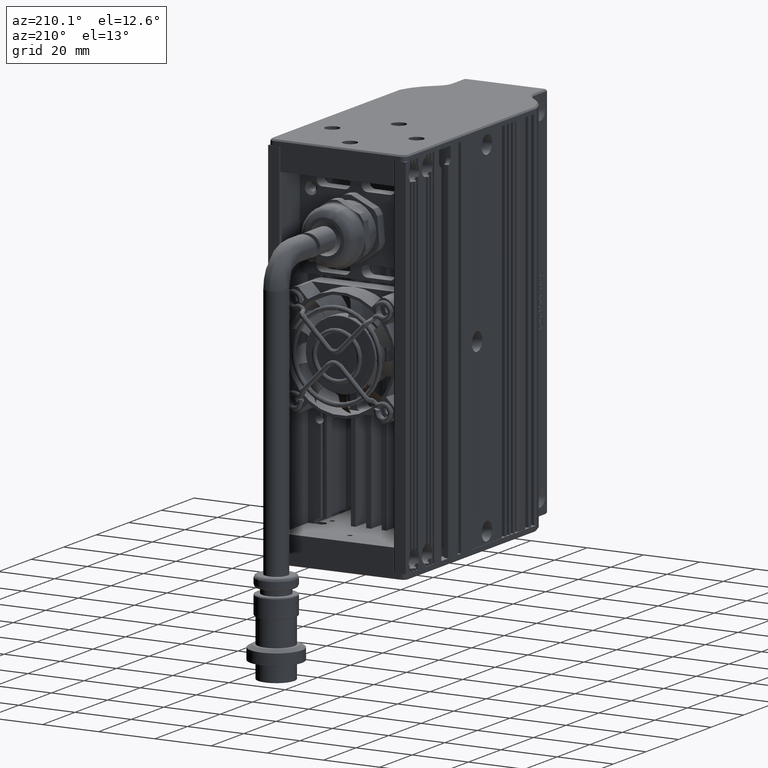
[diagram: clean part render]
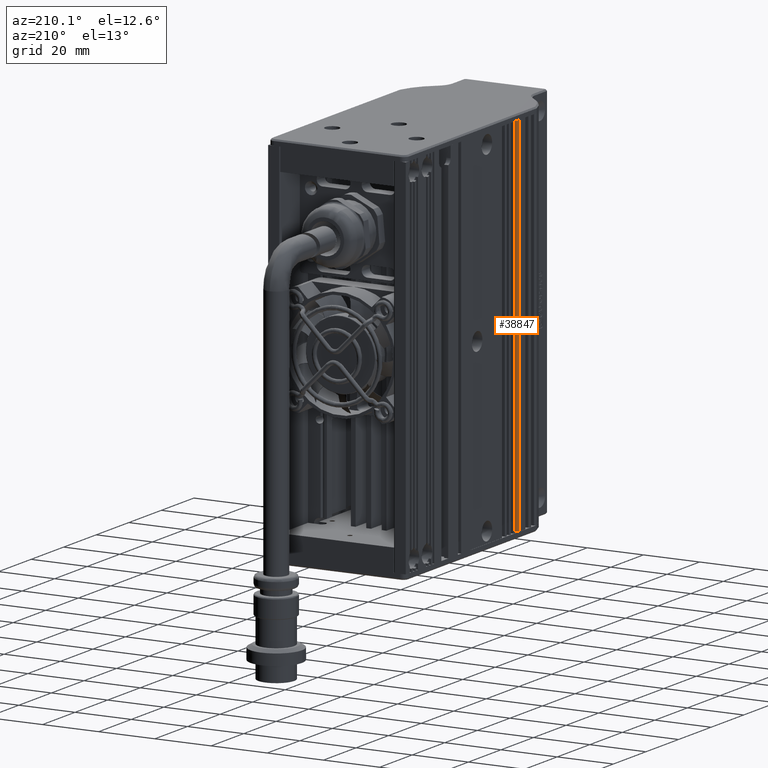
[diagram: same view with one face highlighted and labeled with its STEP entity id]
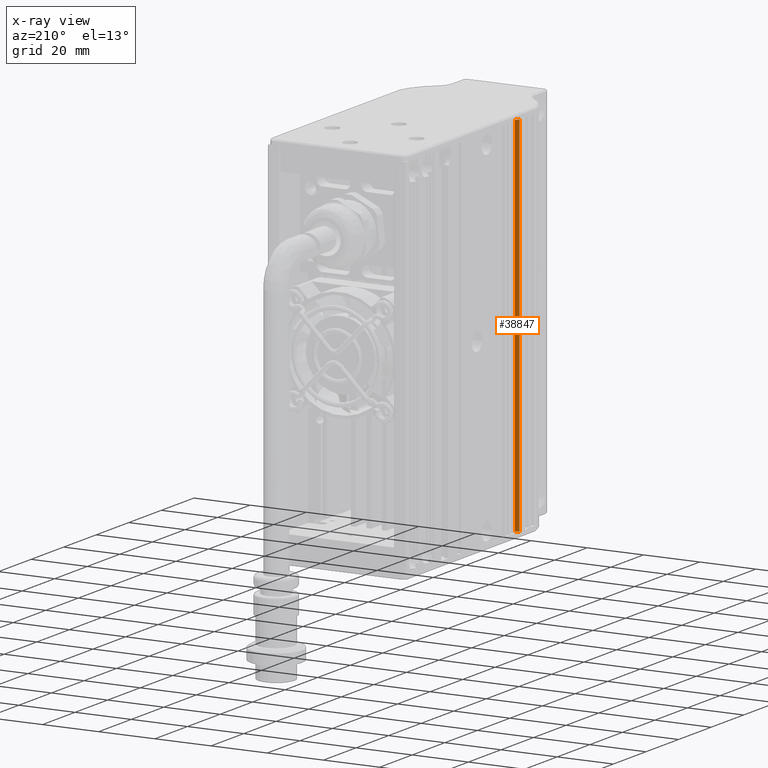
[diagram: x-ray of the same camera — body ghosted, the highlighted face saturated]
A machine part, auxiliary view. The second image highlights one B-rep face of the part: STEP entity #38847.
The next image is the same camera in x-ray: the body ghosted, the highlighted face saturated — about 0% of this face is hidden behind the body in this view.
In plain terms, the highlighted cylindrical surface (edge-blend (fillet) strip) has radius 1 mm, axis along (0, 0, 1).
Its self-contained STEP definition (entity closure, byte-faithful):
#747 = AXIS2_PLACEMENT_3D ( 'NONE', #2057, #13193, #24790 ) ;
#1173 = AXIS2_PLACEMENT_3D ( 'NONE', #70820, #70582, #31671 ) ;
#2057 = CARTESIAN_POINT ( 'NONE',  ( -60.96201180637543600, -25.99547579693032200, -65.00000000000000000 ) ) ;
#2901 = VECTOR ( 'NONE', #12424, 1000.000000000000000 ) ;
#3863 = ORIENTED_EDGE ( 'NONE', *, *, #48138, .T. ) ;
#4471 = VERTEX_POINT ( 'NONE', #48614 ) ;
#5859 = CARTESIAN_POINT ( 'NONE',  ( -61.96201180637543600, -25.99547579693032200, -65.00000000000000000 ) ) ;
#12424 = DIRECTION ( 'NONE',  ( 0.0000000000000000000, 0.0000000000000000000, 1.000000000000000000 ) ) ;
#13193 = DIRECTION ( 'NONE',  ( 0.0000000000000000000, 0.0000000000000000000, 1.000000000000000000 ) ) ;
#15674 = EDGE_CURVE ( 'NONE', #4471, #27441, #22072, .T. ) ;
#17633 = LINE ( 'NONE', #29144, #2901 ) ;
#22072 = CIRCLE ( 'NONE', #54172, 1.000000000000000900 ) ;
#22888 = ORIENTED_EDGE ( 'NONE', *, *, #15674, .T. ) ;
#24790 = DIRECTION ( 'NONE',  ( 1.000000000000000000, 0.0000000000000000000, 0.0000000000000000000 ) ) ;
#25461 = FACE_OUTER_BOUND ( 'NONE', #26776, .T. ) ;
#26763 = CIRCLE ( 'NONE', #1173, 1.000000000000000900 ) ;
#26776 = EDGE_LOOP ( 'NONE', ( #22888, #3863, #46127, #47224 ) ) ;
#26780 = EDGE_CURVE ( 'NONE', #70834, #4471, #17633, .T. ) ;
#27441 = VERTEX_POINT ( 'NONE', #57983 ) ;
#28698 = EDGE_CURVE ( 'NONE', #60186, #70834, #26763, .T. ) ;
#29144 = CARTESIAN_POINT ( 'NONE',  ( -61.96201180637543600, -25.99547579693032200, 65.00000000000000000 ) ) ;
#31671 = DIRECTION ( 'NONE',  ( 1.000000000000000000, 0.0000000000000000000, 0.0000000000000000000 ) ) ;
#35066 = CARTESIAN_POINT ( 'NONE',  ( -60.96201180637543600, -24.99547579693032200, -65.00000000000000000 ) ) ;
#35586 = DIRECTION ( 'NONE',  ( -0.0000000000000000000, -0.0000000000000000000, -1.000000000000000000 ) ) ;
#35720 = LINE ( 'NONE', #63112, #62698 ) ;
#38847 = ADVANCED_FACE ( 'NONE', ( #25461 ), #43822, .T. ) ;
#43822 = CYLINDRICAL_SURFACE ( 'NONE', #747, 1.000000000000000900 ) ;
#45471 = DIRECTION ( 'NONE',  ( -0.0000000000000000000, -0.0000000000000000000, -1.000000000000000000 ) ) ;
#46127 = ORIENTED_EDGE ( 'NONE', *, *, #28698, .T. ) ;
#47224 = ORIENTED_EDGE ( 'NONE', *, *, #26780, .T. ) ;
#48138 = EDGE_CURVE ( 'NONE', #27441, #60186, #35720, .T. ) ;
#48614 = CARTESIAN_POINT ( 'NONE',  ( -61.96201180637543600, -25.99547579693032200, 65.00000000000000000 ) ) ;
#54172 = AXIS2_PLACEMENT_3D ( 'NONE', #56384, #45471, #56864 ) ;
#56384 = CARTESIAN_POINT ( 'NONE',  ( -60.96201180637543600, -25.99547579693032200, 65.00000000000000000 ) ) ;
#56864 = DIRECTION ( 'NONE',  ( 1.000000000000000000, 0.0000000000000000000, 0.0000000000000000000 ) ) ;
#57983 = CARTESIAN_POINT ( 'NONE',  ( -60.96201180637543600, -24.99547579693032200, 65.00000000000000000 ) ) ;
#60186 = VERTEX_POINT ( 'NONE', #35066 ) ;
#62698 = VECTOR ( 'NONE', #35586, 1000.000000000000000 ) ;
#63112 = CARTESIAN_POINT ( 'NONE',  ( -60.96201180637543600, -24.99547579693032200, -65.00000000000000000 ) ) ;
#70582 = DIRECTION ( 'NONE',  ( 0.0000000000000000000, 0.0000000000000000000, 1.000000000000000000 ) ) ;
#70820 = CARTESIAN_POINT ( 'NONE',  ( -60.96201180637543600, -25.99547579693032200, -65.00000000000000000 ) ) ;
#70834 = VERTEX_POINT ( 'NONE', #5859 ) ;